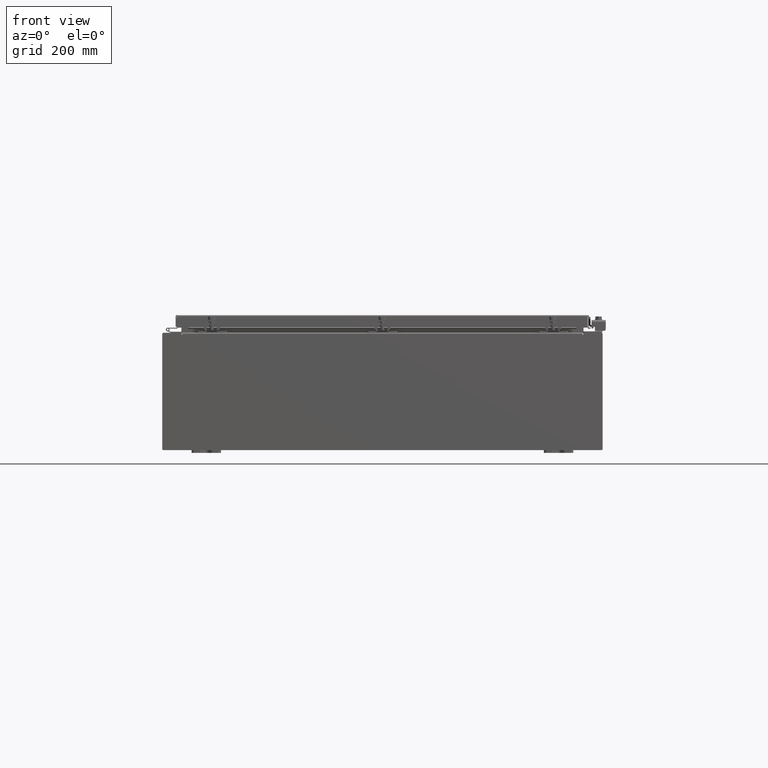
[diagram: clean part render]
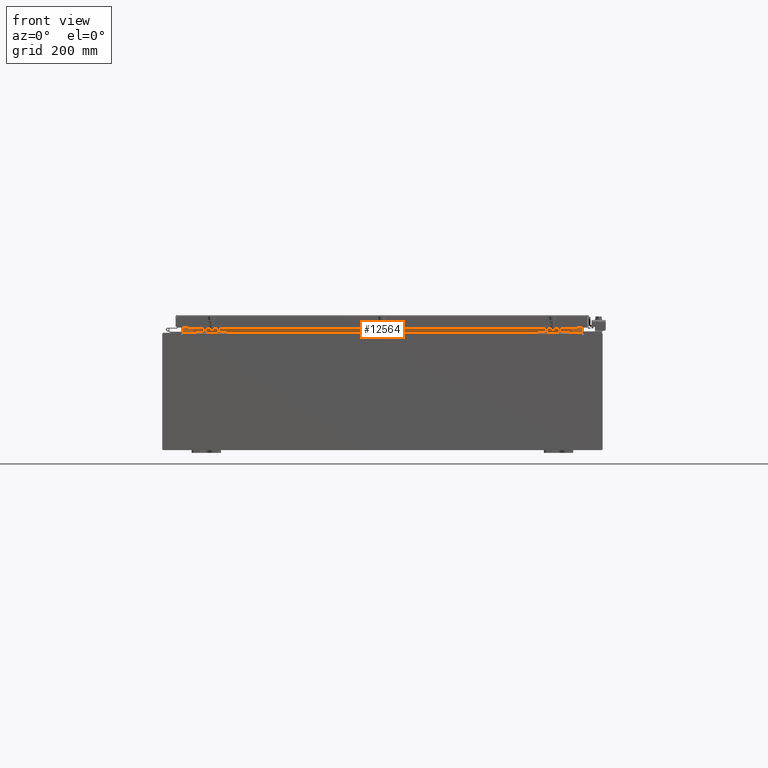
[diagram: same view with one face highlighted and labeled with its STEP entity id]
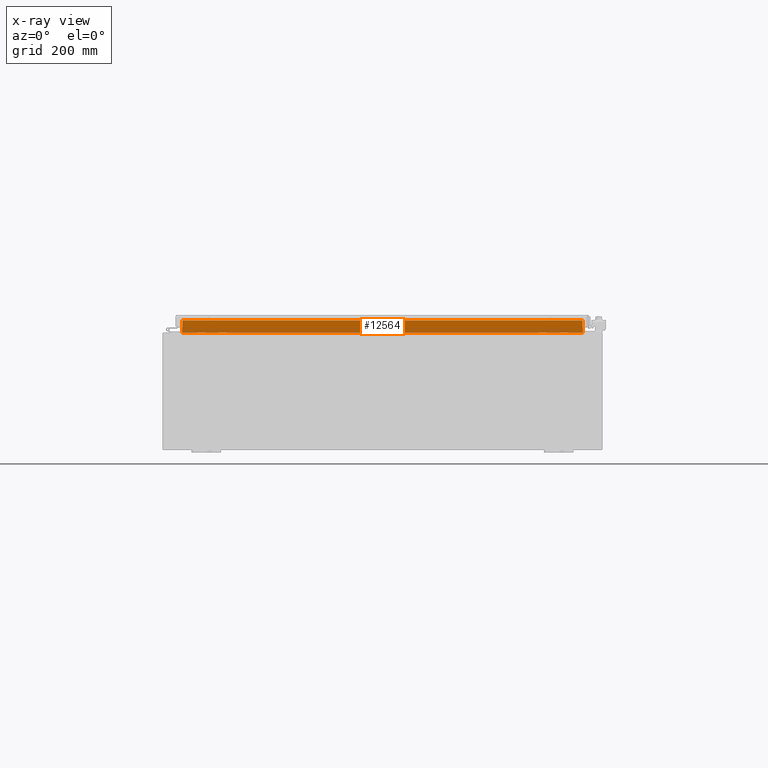
[diagram: x-ray of the same camera — body ghosted, the highlighted face saturated]
A machine part, front view. The second image highlights one B-rep face of the part: STEP entity #12564.
The next image is the same camera in x-ray: the body ghosted, the highlighted face saturated — about 0% of this face is hidden behind the body in this view.
In plain terms, the highlighted planar face has unit normal (-0, -1, 0).
Its self-contained STEP definition (entity closure, byte-faithful):
#6 = ORIENTED_EDGE ( 'NONE', *, *, #22883, .F. ) ;
#176 = ORIENTED_EDGE ( 'NONE', *, *, #35825, .F. ) ;
#1310 = DIRECTION ( 'NONE',  ( -9.992007221626408900E-016, 2.013110121372521300E-016, -1.000000000000000000 ) ) ;
#2138 = DIRECTION ( 'NONE',  ( 9.992007221626408900E-016, -2.013110121372521300E-016, 1.000000000000000000 ) ) ;
#3986 = DIRECTION ( 'NONE',  ( -1.000000000000000000, -3.225867722578232700E-016, -9.992007221626408900E-016 ) ) ;
#5570 = CARTESIAN_POINT ( 'NONE',  ( 13.63720000000000000, -1.300299999999999300, 4.013000000000015900 ) ) ;
#6558 = VECTOR ( 'NONE', #2138, 39.37007874015748100 ) ;
#7361 = CARTESIAN_POINT ( 'NONE',  ( 13.63720000000001600, -1.300299999999999300, 4.837600000000017000 ) ) ;
#8659 = LINE ( 'NONE', #25805, #6558 ) ;
#9102 = CARTESIAN_POINT ( 'NONE',  ( -13.63719999999998600, -1.300299999999999300, 4.837599999999990400 ) ) ;
#10319 = LINE ( 'NONE', #17993, #36172 ) ;
#10866 = ORIENTED_EDGE ( 'NONE', *, *, #15284, .F. ) ;
#10881 = VECTOR ( 'NONE', #3986, 39.37007874015748100 ) ;
#11625 = VECTOR ( 'NONE', #1310, 39.37007874015748100 ) ;
#11851 = FACE_OUTER_BOUND ( 'NONE', #39226, .T. ) ;
#12506 = CARTESIAN_POINT ( 'NONE',  ( -13.63719999999999800, -1.300300000000001300, 4.012999999999989200 ) ) ;
#12564 = ADVANCED_FACE ( 'NONE', ( #11851 ), #22328, .T. ) ;
#14108 = VERTEX_POINT ( 'NONE', #28616 ) ;
#14247 = VERTEX_POINT ( 'NONE', #12506 ) ;
#15284 = EDGE_CURVE ( 'NONE', #14108, #25786, #19877, .T. ) ;
#15501 = DIRECTION ( 'NONE',  ( 3.225867722578236700E-016, 1.000000000000000000, 2.013110121372518100E-016 ) ) ;
#17993 = CARTESIAN_POINT ( 'NONE',  ( -13.63719999999999800, -1.300300000000001300, 4.012999999999991000 ) ) ;
#19877 = LINE ( 'NONE', #7361, #10881 ) ;
#21401 = DIRECTION ( 'NONE',  ( 1.000000000000000000, 3.225867722578232700E-016, 9.791683988582658200E-016 ) ) ;
#21593 = CARTESIAN_POINT ( 'NONE',  ( -13.63719999999999800, -1.300300000000001300, 3.999999999999991600 ) ) ;
#22328 = PLANE ( 'NONE',  #35517 ) ;
#22883 = EDGE_CURVE ( 'NONE', #25786, #14247, #28546, .T. ) ;
#25709 = DIRECTION ( 'NONE',  ( 9.992007221626408900E-016, -2.013110121372521300E-016, 1.000000000000000000 ) ) ;
#25786 = VERTEX_POINT ( 'NONE', #9102 ) ;
#25805 = CARTESIAN_POINT ( 'NONE',  ( 13.63720000000001600, -1.300299999999999300, 4.925300000000017800 ) ) ;
#28101 = EDGE_CURVE ( 'NONE', #14247, #32110, #10319, .T. ) ;
#28546 = LINE ( 'NONE', #21593, #11625 ) ;
#28616 = CARTESIAN_POINT ( 'NONE',  ( 13.63720000000001600, -1.300299999999999300, 4.837600000000017000 ) ) ;
#32110 = VERTEX_POINT ( 'NONE', #5570 ) ;
#32592 = ORIENTED_EDGE ( 'NONE', *, *, #28101, .F. ) ;
#35517 = AXIS2_PLACEMENT_3D ( 'NONE', #39108, #15501, #25709 ) ;
#35825 = EDGE_CURVE ( 'NONE', #32110, #14108, #8659, .T. ) ;
#36172 = VECTOR ( 'NONE', #21401, 39.37007874015748100 ) ;
#39108 = CARTESIAN_POINT ( 'NONE',  ( -4.194595811711970300E-016, -1.300299999999999300, 0.0000000000000000000 ) ) ;
#39226 = EDGE_LOOP ( 'NONE', ( #6, #10866, #176, #32592 ) ) ;